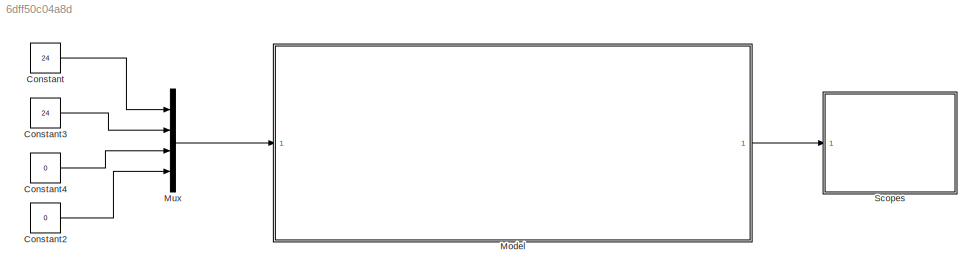
MODEL slx_6dff50c04a8d
KIND model
CONFIG AbsTol = auto
CONFIG FixedStep = 0.002
CONFIG MaxStep = auto
CONFIG MinStep = auto
CONFIG RelTol = 1e-3
CONFIG SampleTimeConstraint = Unconstrained
CONFIG Solver = ode1
CONFIG SolverMode = Auto
CONFIG SolverName = ode1
CONFIG StartTime = 0.0
CONFIG StopTime = 200
BLOCK [Constant] Constant
  Value = 24
BLOCK [Constant] Constant2
  Value = 0
BLOCK [Constant] Constant3
  Value = 24
BLOCK [Constant] Constant4
  Value = 0
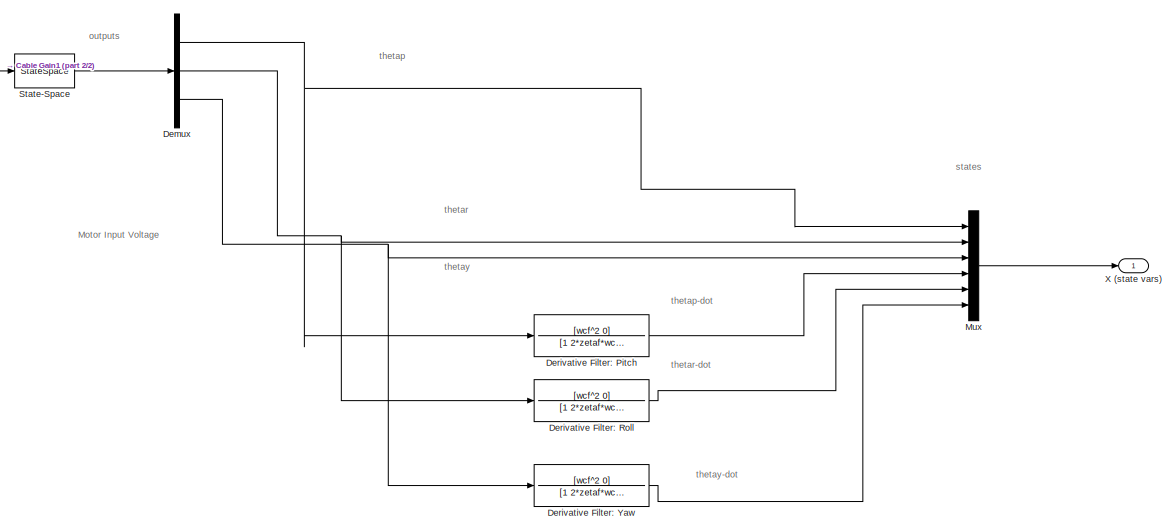
[diagram: Model  - part 1/2, center side, full height]
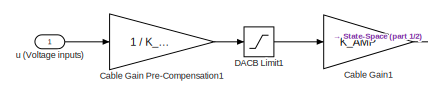
[diagram: Model  - part 2/2, top left region]
BLOCK [SubSystem] Model 
  Ports = [1, 1]
  RequestExecContextInheritance = off
  Variant = off
BLOCK [Gain] Model /Cable Gain Pre-Compensation1
  Gain = 1 / K_AMP
  Multiplication = Matrix(K*u)
BLOCK [Gain] Model /Cable Gain1
  Gain = K_AMP
  Multiplication = Matrix(K*u)
BLOCK [Saturate] Model /DACB Limit1
  InputPortMap = u0
  LowerLimit = -VMAX_DAC
  Ports = [1, 1]
  UpperLimit = VMAX_DAC
BLOCK [Demux] Model /Demux
  DisplayOption = bar
  Outputs = 3
  Ports = [1, 3]
BLOCK [TransferFcn] Model /Derivative Filter: Pitch
  Denominator = [1 2*zetaf*wcf wcf^2]
  Numerator = [wcf^2 0]
BLOCK [TransferFcn] Model /Derivative Filter: Roll
  Denominator = [1 2*zetaf*wcf wcf^2]
  Numerator = [wcf^2 0]
BLOCK [TransferFcn] Model /Derivative Filter: Yaw
  Denominator = [1 2*zetaf*wcf wcf^2]
  Numerator = [wcf^2 0]
BLOCK [Mux] Model /Mux
  DisplayOption = bar
  Inputs = 6
  Ports = [6, 1]
BLOCK [StateSpace] Model /State-Space
  A = A
  B = B
  C = C
  D = D
  Ports = [1, 1]
  X0 = 0
BLOCK [Outport] Model /X (state vars)
  IconDisplay = Port number
BLOCK [Inport] Model /u (Voltage inputs)
  IconDisplay = Port number
BLOCK [Mux] Mux
  DisplayOption = bar
  Ports = [4, 1]
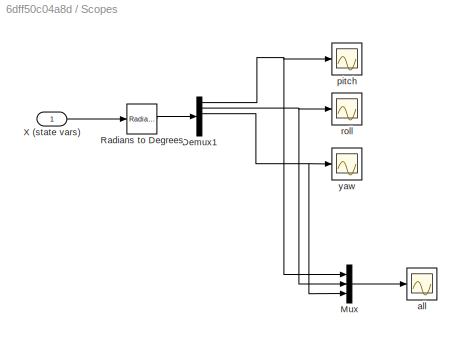
BLOCK [SubSystem] Scopes
  Ports = [1]
  RequestExecContextInheritance = off
  Variant = off
BLOCK [Demux] Scopes/Demux1
  DisplayOption = bar
  Outputs = 6
  Ports = [1, 6]
BLOCK [Mux] Scopes/Mux
  DisplayOption = bar
  Inputs = 3
  Ports = [3, 1]
BLOCK [Reference] Scopes/Radians to Degrees  REF=simulink_extras/Transformations/Radians
to Degrees
  Ports = [1, 1]
  SourceBlock = simulink_extras/Transformations/Radians\nto Degrees
  SourceType = RadiansToDegrees
BLOCK [Inport] Scopes/X (state vars)
  IconDisplay = Port number
BLOCK [Scope] Scopes/all
  Ports = [1]
  ScopeSpecificationString = Simulink.scopes.TimeScopeBlockCfg('CurrentConfiguration', extmgr.ConfigurationSet(extmgr.Configuration('Core','General UI',true),extmgr.Configuration('Core','Source UI',true),extmgr.Configuration('Sources','WiredSimulink',true),extmgr.Configuration('Visuals','Time Domain',true,'SerializedDisplays',{struct('MinYLimReal','-2022533.77536','MaxYLimReal','224725.97504','YLabelReal','','MinYLimMag','   ...<+1394ch>
BLOCK [Scope] Scopes/pitch
  Ports = [1]
  ScopeSpecificationString = Simulink.scopes.TimeScopeBlockCfg('CurrentConfiguration', extmgr.ConfigurationSet(extmgr.Configuration('Core','General UI',true),extmgr.Configuration('Core','Source UI',true),extmgr.Configuration('Sources','WiredSimulink',true,'DataLoggingVariableName','ScopeData7'),extmgr.Configuration('Visuals','Time Domain',true,'SerializedDisplays',{struct('MinYLimReal','-1.00000','MaxYLimReal','1.00000','YLab...<+1367ch>
BLOCK [Scope] Scopes/roll
  Ports = [1]
  ScopeSpecificationString = Simulink.scopes.TimeScopeBlockCfg('CurrentConfiguration', extmgr.ConfigurationSet(extmgr.Configuration('Core','General UI',true),extmgr.Configuration('Core','Source UI',true),extmgr.Configuration('Sources','WiredSimulink',true,'DataLoggingVariableName','ScopeData8'),extmgr.Configuration('Visuals','Time Domain',true,'SerializedDisplays',{struct('MinYLimReal','-1.00000','MaxYLimReal','1.00000','YLab...<+1367ch>
BLOCK [Scope] Scopes/yaw
  Ports = [1]
  ScopeSpecificationString = Simulink.scopes.TimeScopeBlockCfg('CurrentConfiguration', extmgr.ConfigurationSet(extmgr.Configuration('Core','General UI',true),extmgr.Configuration('Core','Source UI',true),extmgr.Configuration('Sources','WiredSimulink',true,'DataLoggingVariableName','ScopeData9'),extmgr.Configuration('Visuals','Time Domain',true,'SerializedDisplays',{struct('MinYLimReal','-2025125.11897','MaxYLimReal','225013.9...<+1439ch>
ANNOTATION Model : Motor Input Voltage
ANNOTATION Model : outputs
ANNOTATION Model : states
ANNOTATION Model : thetap
ANNOTATION Model : thetap-dot
ANNOTATION Model : thetar
ANNOTATION Model : thetar-dot
ANNOTATION Model : thetay
ANNOTATION Model : thetay-dot
LINE Constant2:1 -> Mux:4
LINE Constant3:1 -> Mux:2
LINE Constant4:1 -> Mux:3
LINE Constant:1 -> Mux:1
LINE Model /Cable Gain Pre-Compensation1:1 -> Model /DACB Limit1:1
LINE Model /Cable Gain1:1 -> Model /State-Space:1
LINE Model /DACB Limit1:1 -> Model /Cable Gain1:1
NET Model /Demux:1 -> Model /Derivative Filter: Pitch:1, Model /Mux:1
NET Model /Demux:2 -> Model /Derivative Filter: Roll:1, Model /Mux:2
NET Model /Demux:3 -> Model /Derivative Filter: Yaw:1, Model /Mux:3
LINE Model /Derivative Filter: Pitch:1 -> Model /Mux:4
LINE Model /Derivative Filter: Roll:1 -> Model /Mux:5
LINE Model /Derivative Filter: Yaw:1 -> Model /Mux:6
LINE Model /Mux:1 -> Model /X (state vars):1
LINE Model /State-Space:1 -> Model /Demux:1
LINE Model /u (Voltage inputs):1 -> Model /Cable Gain Pre-Compensation1:1
LINE Model :1 -> Scopes:1
LINE Mux:1 -> Model :1
NET Scopes/Demux1:1 -> Scopes/Mux:1, Scopes/pitch:1
NET Scopes/Demux1:2 -> Scopes/Mux:2, Scopes/roll:1
NET Scopes/Demux1:3 -> Scopes/Mux:3, Scopes/yaw:1
LINE Scopes/Mux:1 -> Scopes/all:1
LINE Scopes/Radians to Degrees:1 -> Scopes/Demux1:1
LINE Scopes/X (state vars):1 -> Scopes/Radians to Degrees:1
note: NET lines group one-source signal fan-out (src -> all destinations, sorted); 1:1 wires keep LINE
